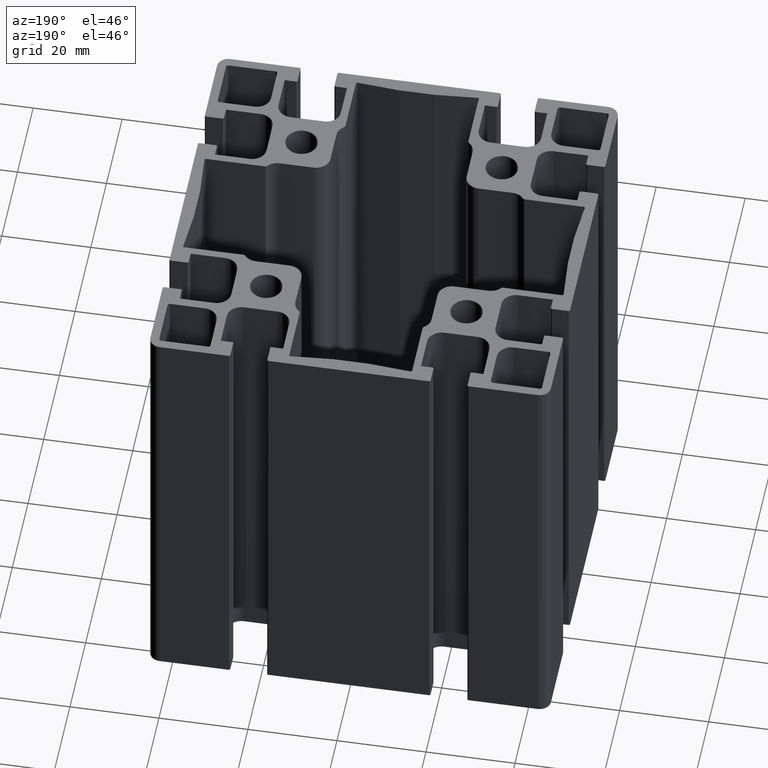
[diagram: clean part render]
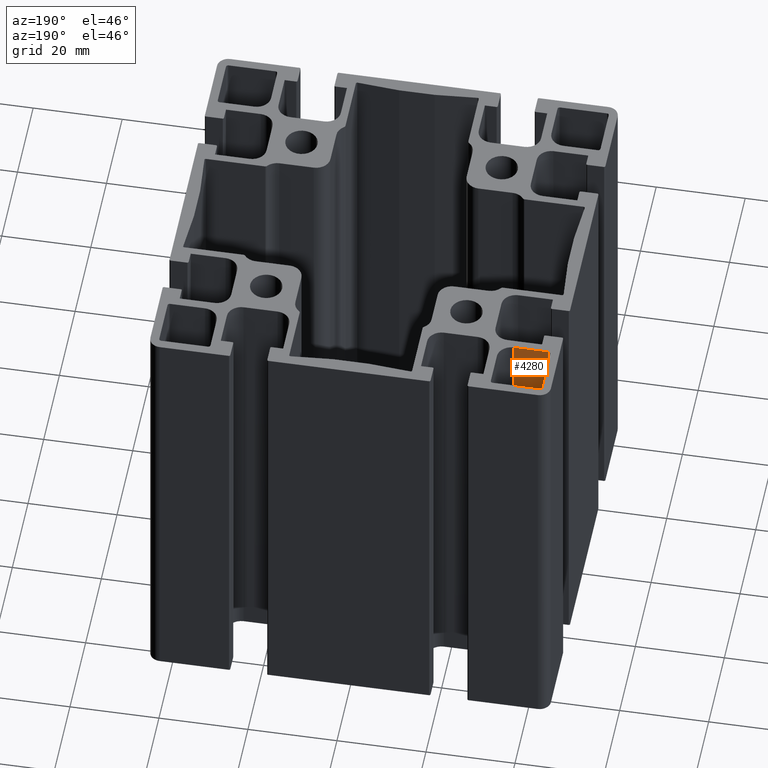
[diagram: same view with one face highlighted and labeled with its STEP entity id]
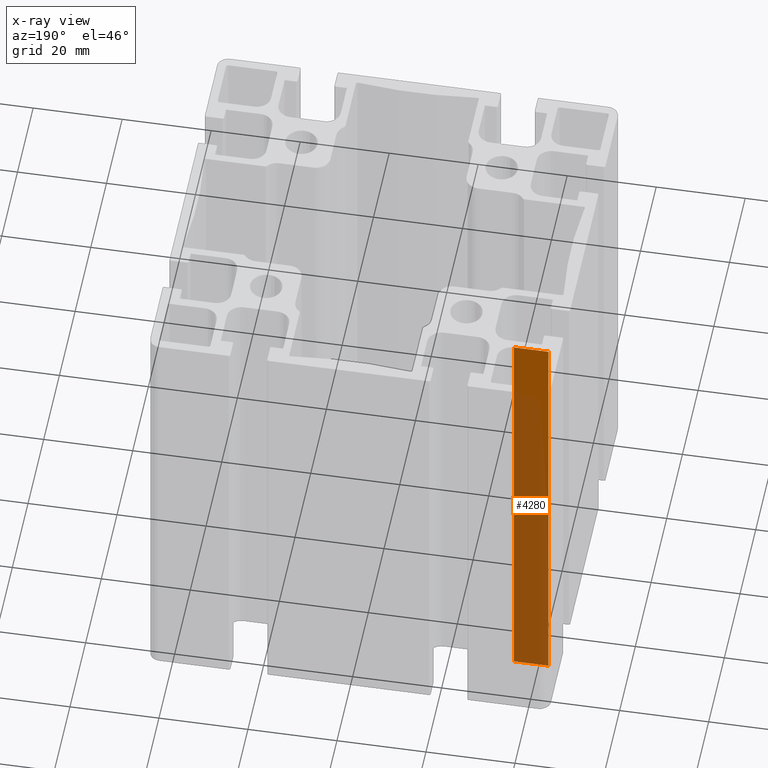
[diagram: x-ray of the same camera — body ghosted, the highlighted face saturated]
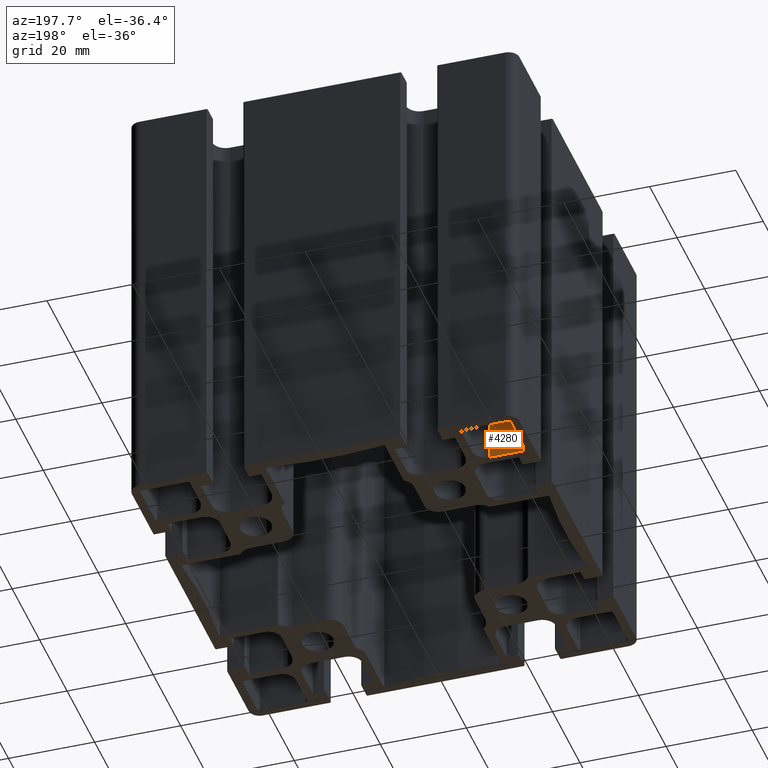
[diagram: same view with one face highlighted and labeled with its STEP entity id]
A machine part, auxiliary view. The second image highlights one B-rep face of the part: STEP entity #4280.
The next image is the same camera in x-ray: the body ghosted, the highlighted face saturated — about 80% of this face is hidden behind the body in this view.
A second angle (auxiliary view) of the same face is appended — the face is thin or edge-on in the first view.
In plain terms, the highlighted planar face has unit normal (0, -1, 0).
Its self-contained STEP definition (entity closure, byte-faithful):
#532=FACE_OUTER_BOUND('',#750,.T.);
#750=EDGE_LOOP('',(#3479,#3480,#3481,#3482));
#1172=LINE('',#7134,#1604);
#1184=LINE('',#7169,#1616);
#1185=LINE('',#7172,#1617);
#1186=LINE('',#7173,#1618);
#1604=VECTOR('',#5852,100.);
#1616=VECTOR('',#5886,100.);
#1617=VECTOR('',#5891,7.8);
#1618=VECTOR('',#5892,7.8);
#2044=VERTEX_POINT('',#7128);
#2046=VERTEX_POINT('',#7132);
#2057=VERTEX_POINT('',#7166);
#2058=VERTEX_POINT('',#7168);
#2646=EDGE_CURVE('',#2046,#2044,#1172,.T.);
#2663=EDGE_CURVE('',#2058,#2057,#1184,.T.);
#2665=EDGE_CURVE('',#2044,#2057,#1185,.T.);
#2666=EDGE_CURVE('',#2058,#2046,#1186,.T.);
#3479=ORIENTED_EDGE('',*,*,#2665,.F.);
#3480=ORIENTED_EDGE('',*,*,#2646,.F.);
#3481=ORIENTED_EDGE('',*,*,#2666,.F.);
#3482=ORIENTED_EDGE('',*,*,#2663,.T.);
#4070=PLANE('',#4688);
#4280=ADVANCED_FACE('',(#532),#4070,.F.);
#4688=AXIS2_PLACEMENT_3D('',#7171,#5889,#5890);
#5852=DIRECTION('',(0.,0.,1.));
#5886=DIRECTION('',(0.,0.,1.));
#5889=DIRECTION('center_axis',(5.69345140833414E-16,-1.,0.));
#5890=DIRECTION('ref_axis',(0.,0.,-1.));
#5891=DIRECTION('',(-1.,-5.69345140833414E-16,0.));
#5892=DIRECTION('',(1.,5.69345140833414E-16,0.));
#7128=CARTESIAN_POINT('',(-34.7,31.5,100.));
#7132=CARTESIAN_POINT('',(-34.7,31.5,0.));
#7134=CARTESIAN_POINT('',(-34.7,31.5,0.));
#7166=CARTESIAN_POINT('',(-42.5,31.5,100.));
#7168=CARTESIAN_POINT('',(-42.5,31.5,0.));
#7169=CARTESIAN_POINT('',(-42.5,31.5,0.));
#7171=CARTESIAN_POINT('Origin',(-34.7,31.5,0.));
#7172=CARTESIAN_POINT('',(-17.35,31.5,100.));
#7173=CARTESIAN_POINT('',(-17.35,31.5,0.));